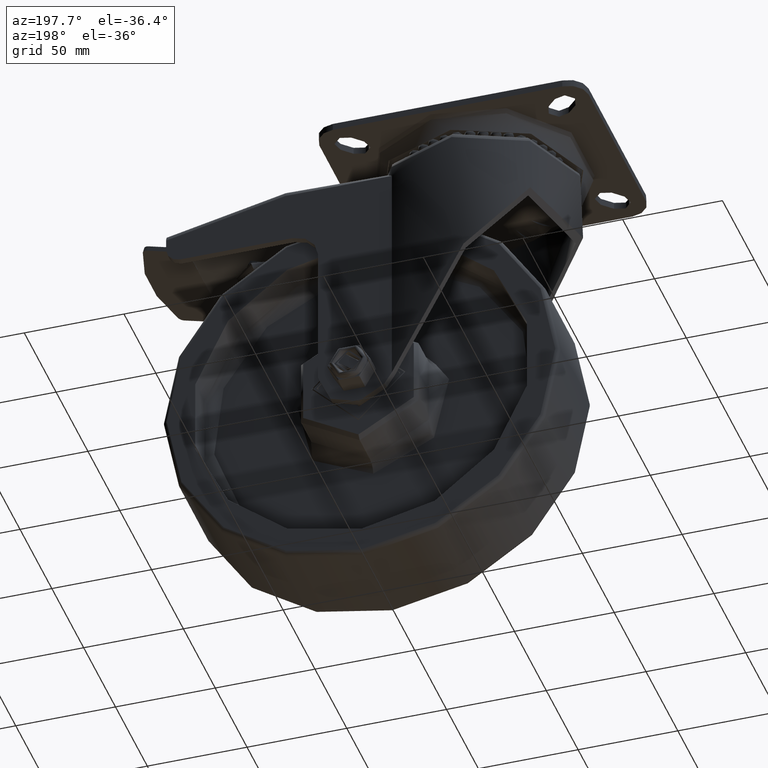
[diagram: clean part render]
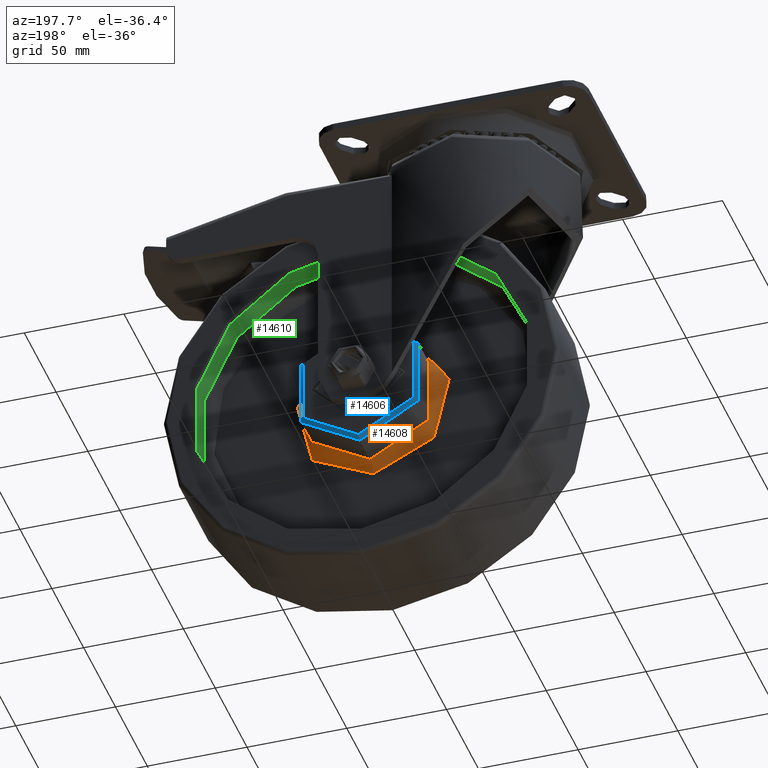
[diagram: same view with three faces highlighted in distinct colors, each labeled with its STEP entity id]
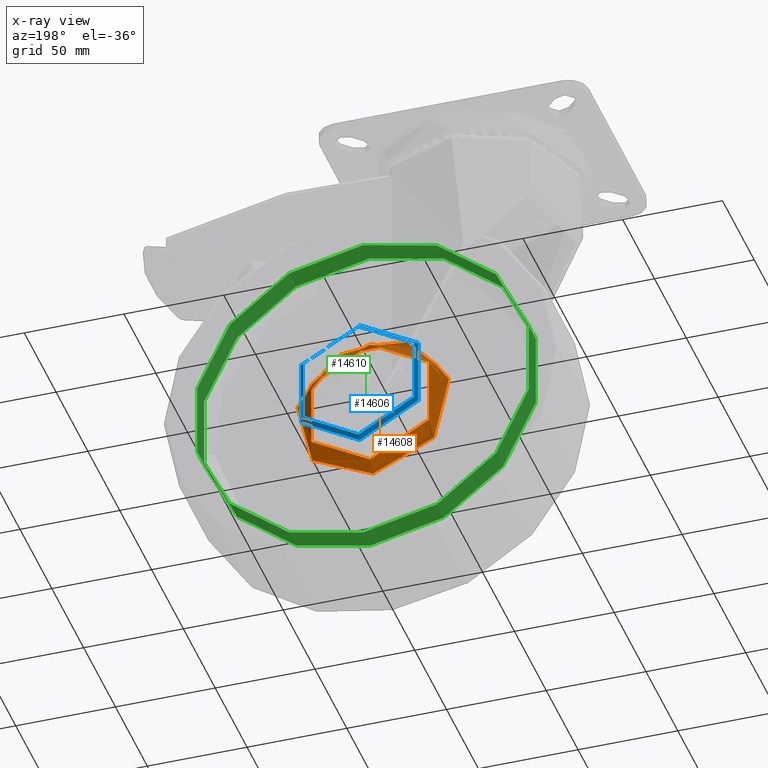
[diagram: x-ray of the same camera — body ghosted, the three highlighted faces saturated]
A machine part, auxiliary view with three faces highlighted in distinct colors.
The next image is the same camera in x-ray (body ghosted, the three faces saturated) — at least one of them is partly hidden behind the body in this view.
Their STEP definitions:

[orange] entity #14608 — the highlighted toroidal blend (fillet) surface has major radius 39 mm and minor (blend) radius 5 mm.
#1902=TOROIDAL_SURFACE('',#15772,39.,5.);
#1941=FACE_OUTER_BOUND('',#2815,.T.);
#2815=EDGE_LOOP('',(#10118,#10119,#10120,#10121));
#5976=CIRCLE('',#15771,34.);
#5977=CIRCLE('',#15773,5.);
#5978=CIRCLE('',#15774,39.);
#6492=VERTEX_POINT('',#20948);
#6493=VERTEX_POINT('',#20952);
#7932=EDGE_CURVE('',#6492,#6492,#5976,.T.);
#7933=EDGE_CURVE('',#6492,#6493,#5977,.T.);
#7934=EDGE_CURVE('',#6493,#6493,#5978,.T.);
#10118=ORIENTED_EDGE('',*,*,#7932,.F.);
#10119=ORIENTED_EDGE('',*,*,#7933,.T.);
#10120=ORIENTED_EDGE('',*,*,#7934,.T.);
#10121=ORIENTED_EDGE('',*,*,#7933,.F.);
#14608=ADVANCED_FACE('',(#1941),#1902,.F.);
#15771=AXIS2_PLACEMENT_3D('',#20950,#17176,#17177);
#15772=AXIS2_PLACEMENT_3D('',#20951,#17178,#17179);
#15773=AXIS2_PLACEMENT_3D('',#20953,#17180,#17181);
#15774=AXIS2_PLACEMENT_3D('',#20954,#17182,#17183);
#17176=DIRECTION('center_axis',(0.,1.,0.));
#17177=DIRECTION('ref_axis',(0.,0.,1.));
#17178=DIRECTION('center_axis',(0.,1.,0.));
#17179=DIRECTION('ref_axis',(0.,0.,1.));
#17180=DIRECTION('center_axis',(1.,0.,-1.22464679914735E-16));
#17181=DIRECTION('ref_axis',(-1.22464679914735E-16,0.,-1.));
#17182=DIRECTION('center_axis',(0.,1.,0.));
#17183=DIRECTION('ref_axis',(0.,0.,1.));
#20948=CARTESIAN_POINT('',(4.163799117101E-15,10.75,-34.));
#20950=CARTESIAN_POINT('Origin',(0.,10.75,0.));
#20951=CARTESIAN_POINT('Origin',(0.,10.75,0.));
#20952=CARTESIAN_POINT('',(-4.77612251667468E-15,5.75,-39.));
#20953=CARTESIAN_POINT('Origin',(-4.77612251667468E-15,10.75,-39.));
#20954=CARTESIAN_POINT('Origin',(0.,5.75,0.));

[blue] entity #14606 — the highlighted conical surface has half-angle 45 deg.
#1243=CONICAL_SURFACE('',#15767,33.,0.785398163397448);
#1939=FACE_OUTER_BOUND('',#2813,.T.);
#2813=EDGE_LOOP('',(#10110,#10111,#10112,#10113));
#3834=LINE('',#20945,#4897);
#4897=VECTOR('',#17170,33.);
#5974=CIRCLE('',#15768,34.);
#5975=CIRCLE('',#15769,32.);
#6490=VERTEX_POINT('',#20942);
#6491=VERTEX_POINT('',#20944);
#7928=EDGE_CURVE('',#6490,#6490,#5974,.T.);
#7929=EDGE_CURVE('',#6490,#6491,#3834,.T.);
#7930=EDGE_CURVE('',#6491,#6491,#5975,.T.);
#10110=ORIENTED_EDGE('',*,*,#7928,.T.);
#10111=ORIENTED_EDGE('',*,*,#7929,.T.);
#10112=ORIENTED_EDGE('',*,*,#7930,.F.);
#10113=ORIENTED_EDGE('',*,*,#7929,.F.);
#14606=ADVANCED_FACE('',(#1939),#1243,.T.);
#15767=AXIS2_PLACEMENT_3D('',#20941,#17166,#17167);
#15768=AXIS2_PLACEMENT_3D('',#20943,#17168,#17169);
#15769=AXIS2_PLACEMENT_3D('',#20946,#17171,#17172);
#17166=DIRECTION('center_axis',(0.,-1.,0.));
#17167=DIRECTION('ref_axis',(0.,0.,1.));
#17168=DIRECTION('center_axis',(0.,1.,0.));
#17169=DIRECTION('ref_axis',(0.,0.,1.));
#17170=DIRECTION('',(-8.65956056235493E-17,0.707106781186548,0.707106781186547));
#17171=DIRECTION('center_axis',(0.,1.,0.));
#17172=DIRECTION('ref_axis',(0.,0.,1.));
#20941=CARTESIAN_POINT('Origin',(0.,28.,0.));
#20942=CARTESIAN_POINT('',(4.163799117101E-15,27.,-34.));
#20943=CARTESIAN_POINT('Origin',(0.,27.,0.));
#20944=CARTESIAN_POINT('',(3.91886975727153E-15,29.,-32.));
#20945=CARTESIAN_POINT('',(4.04133443718627E-15,28.,-33.));
#20946=CARTESIAN_POINT('Origin',(0.,29.,0.));

[green] entity #14610 — the highlighted cylindrical surface (bore or boss wall) has radius 85.25 mm, axis along (0, 1, 0).
#1943=FACE_OUTER_BOUND('',#2817,.T.);
#2817=EDGE_LOOP('',(#10126,#10127,#10128,#10129));
#3836=LINE('',#20963,#4899);
#4899=VECTOR('',#17194,85.25);
#5981=CIRCLE('',#15778,85.25);
#5982=CIRCLE('',#15780,85.25);
#6495=VERTEX_POINT('',#20958);
#6496=VERTEX_POINT('',#20962);
#7937=EDGE_CURVE('',#6495,#6495,#5981,.T.);
#7938=EDGE_CURVE('',#6495,#6496,#3836,.T.);
#7939=EDGE_CURVE('',#6496,#6496,#5982,.T.);
#10126=ORIENTED_EDGE('',*,*,#7937,.F.);
#10127=ORIENTED_EDGE('',*,*,#7938,.T.);
#10128=ORIENTED_EDGE('',*,*,#7939,.T.);
#10129=ORIENTED_EDGE('',*,*,#7938,.F.);
#14393=CYLINDRICAL_SURFACE('',#15779,85.25);
#14610=ADVANCED_FACE('',(#1943),#14393,.F.);
#15778=AXIS2_PLACEMENT_3D('',#20960,#17190,#17191);
#15779=AXIS2_PLACEMENT_3D('',#20961,#17192,#17193);
#15780=AXIS2_PLACEMENT_3D('',#20964,#17195,#17196);
#17190=DIRECTION('center_axis',(0.,1.,0.));
#17191=DIRECTION('ref_axis',(0.,0.,1.));
#17192=DIRECTION('center_axis',(0.,1.,0.));
#17193=DIRECTION('ref_axis',(0.,0.,1.));
#17194=DIRECTION('',(0.,1.,0.));
#17195=DIRECTION('center_axis',(0.,1.,0.));
#17196=DIRECTION('ref_axis',(0.,0.,1.));
#20958=CARTESIAN_POINT('',(-1.04401139627312E-14,10.75,-85.25));
#20960=CARTESIAN_POINT('Origin',(0.,10.75,0.));
#20961=CARTESIAN_POINT('Origin',(0.,16.375,0.));
#20962=CARTESIAN_POINT('',(1.04401139627312E-14,22.,-85.25));
#20963=CARTESIAN_POINT('',(-1.04401139627312E-14,16.375,-85.25));
#20964=CARTESIAN_POINT('Origin',(0.,22.,0.));